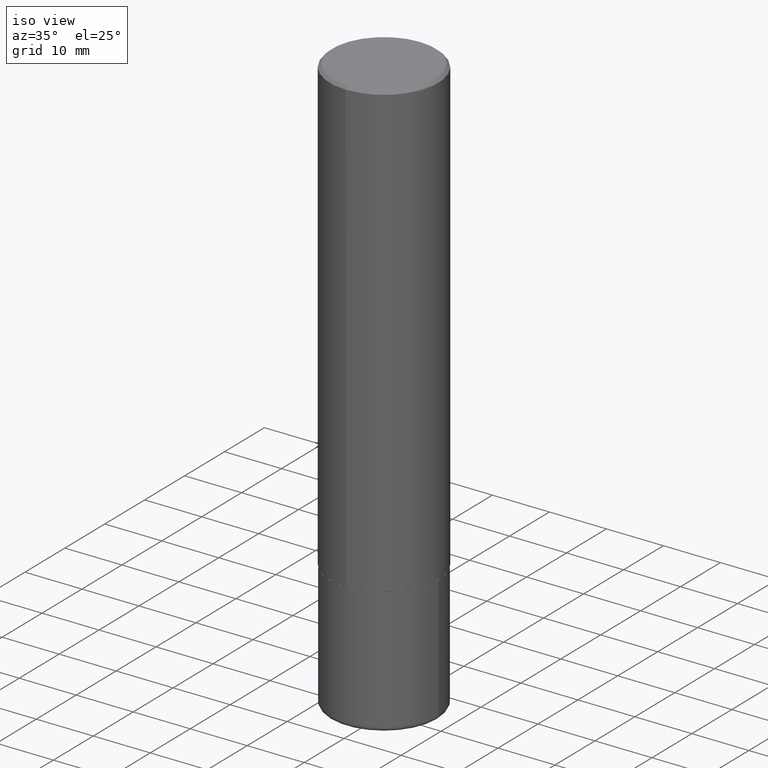
[diagram: clean part render]
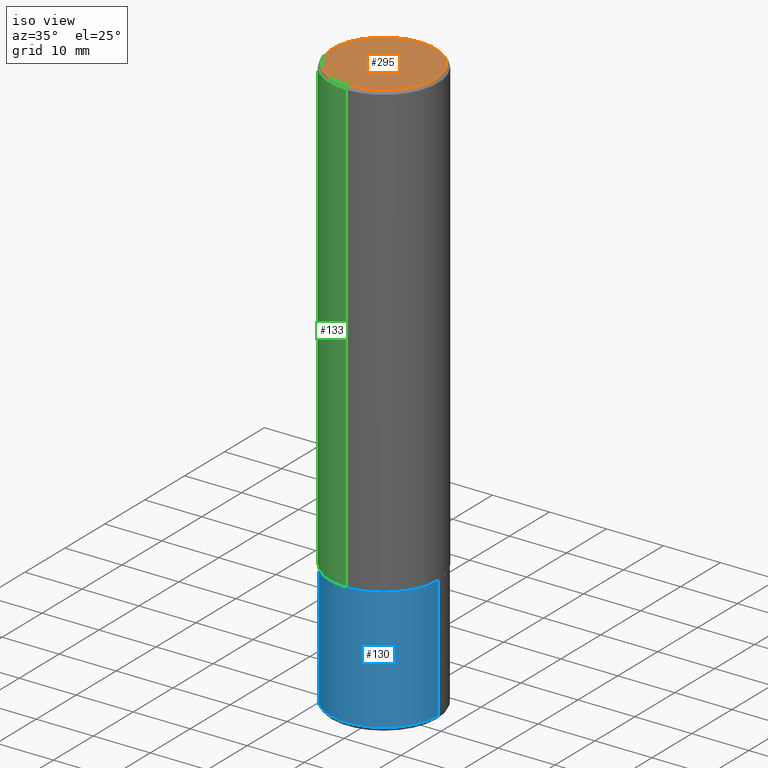
[diagram: same view with three faces highlighted in distinct colors, each labeled with its STEP entity id]
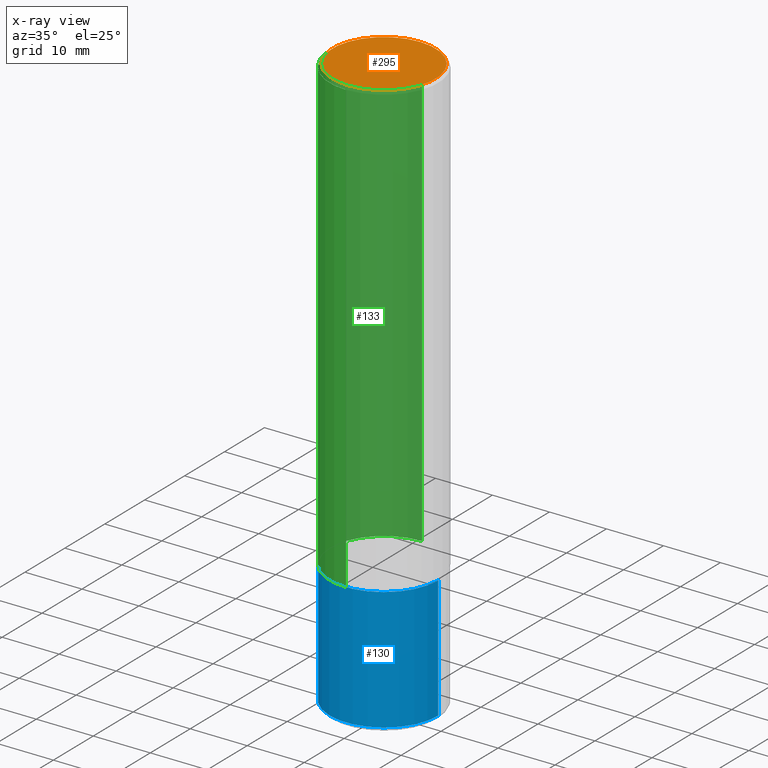
[diagram: x-ray of the same camera — body ghosted, the three highlighted faces saturated]
A machine part, iso view with three faces highlighted in distinct colors.
The next image is the same camera in x-ray (body ghosted, the three faces saturated) — at least one of them is partly hidden behind the body in this view.
Their STEP definitions:

[orange] entity #295 — the highlighted planar face has unit normal (0, -0, -1).
#10 = EDGE_CURVE ( 'NONE', #43, #173, #357, .T. ) ;
#43 = VERTEX_POINT ( 'NONE', #54 ) ;
#45 = CARTESIAN_POINT ( 'NONE',  ( -4.796192645073071495E-45, 6.844733884640892963E-31, 1.960833955664386180E-16 ) ) ;
#54 = CARTESIAN_POINT ( 'NONE',  ( -2.504081769186608216E-15, -0.3549999999999999267, 1.435291091877574841E-15 ) ) ;
#68 = DIRECTION ( 'NONE',  ( -6.982962677686265922E-15, -1.000000000000000000, 3.490725905101791232E-15 ) ) ;
#70 = AXIS2_PLACEMENT_3D ( 'NONE', #45, #305, #68 ) ;
#103 = ORIENTED_EDGE ( 'NONE', *, *, #148, .T. ) ;
#110 = PLANE ( 'NONE',  #166 ) ;
#137 = AXIS2_PLACEMENT_3D ( 'NONE', #258, #330, #418 ) ;
#148 = EDGE_CURVE ( 'NONE', #173, #43, #397, .T. ) ;
#166 = AXIS2_PLACEMENT_3D ( 'NONE', #408, #172, #319 ) ;
#172 = DIRECTION ( 'NONE',  ( 2.445996322747270084E-29, -3.490725905101792021E-15, -1.000000000000000000 ) ) ;
#173 = VERTEX_POINT ( 'NONE', #263 ) ;
#258 = CARTESIAN_POINT ( 'NONE',  ( -4.796192645073071495E-45, 6.844733884640892963E-31, 1.960833955664386180E-16 ) ) ;
#263 = CARTESIAN_POINT ( 'NONE',  ( 2.548781377355487113E-15, 0.3549999999999999267, -1.043124300744697210E-15 ) ) ;
#271 = EDGE_LOOP ( 'NONE', ( #103, #372 ) ) ;
#289 = FACE_OUTER_BOUND ( 'NONE', #271, .T. ) ;
#295 = ADVANCED_FACE ( 'NONE', ( #289 ), #110, .F. ) ;
#305 = DIRECTION ( 'NONE',  ( -2.445996322747269804E-29, 3.490725905101792415E-15, 1.000000000000000000 ) ) ;
#319 = DIRECTION ( 'NONE',  ( 6.982962677686265922E-15, 1.000000000000000000, -3.490725905101792021E-15 ) ) ;
#330 = DIRECTION ( 'NONE',  ( -2.445996322747269804E-29, 3.490725905101792415E-15, 1.000000000000000000 ) ) ;
#357 = CIRCLE ( 'NONE', #70, 0.3549999999999999267 ) ;
#372 = ORIENTED_EDGE ( 'NONE', *, *, #10, .T. ) ;
#397 = CIRCLE ( 'NONE', #137, 0.3549999999999999267 ) ;
#408 = CARTESIAN_POINT ( 'NONE',  ( 2.478951750578623815E-15, 0.3549999999999999267, -1.141165998527916815E-15 ) ) ;
#418 = DIRECTION ( 'NONE',  ( -6.982962677686265922E-15, -1.000000000000000000, 3.490725905101791232E-15 ) ) ;

[blue] entity #130 — the highlighted cylindrical surface (partial cylindrical patch) has radius 9.525 mm, axis along (-0, 0, 1).
#5 = VERTEX_POINT ( 'NONE', #239 ) ;
#42 = CYLINDRICAL_SURFACE ( 'NONE', #332, 0.3750000000000000555 ) ;
#47 = CARTESIAN_POINT ( 'NONE',  ( 0.3750000000000000555, -2.618611004132350016E-15, 1.828566290923476203E-29 ) ) ;
#49 = CARTESIAN_POINT ( 'NONE',  ( -0.3750000000000000555, -9.721494790445683584E-15, -3.125000000000000000 ) ) ;
#51 = DIRECTION ( 'NONE',  ( 1.000000000000000000, -6.982962677686266711E-15, 0.000000000000000000 ) ) ;
#53 = EDGE_CURVE ( 'NONE', #5, #234, #185, .T. ) ;
#63 = CARTESIAN_POINT ( 'NONE',  ( -0.3750000000000000555, 2.664535259100376091E-15, -1.844600658845589598E-29 ) ) ;
#69 = EDGE_LOOP ( 'NONE', ( #307, #337, #74, #284 ) ) ;
#74 = ORIENTED_EDGE ( 'NONE', *, *, #225, .T. ) ;
#83 = DIRECTION ( 'NONE',  ( -2.445468806185136597E-29, 3.491481338843145583E-15, 1.000000000000000000 ) ) ;
#118 = CARTESIAN_POINT ( 'NONE',  ( 0.000000000000000000, 0.000000000000000000, 0.000000000000000000 ) ) ;
#123 = VECTOR ( 'NONE', #280, 39.37007874015748143 ) ;
#130 = ADVANCED_FACE ( 'NONE', ( #201 ), #42, .T. ) ;
#153 = DIRECTION ( 'NONE',  ( 1.000000000000000000, -6.982962677686266711E-15, 0.000000000000000000 ) ) ;
#176 = CIRCLE ( 'NONE', #275, 0.3750000000000000555 ) ;
#185 = CIRCLE ( 'NONE', #219, 0.3750000000000000555 ) ;
#189 = CARTESIAN_POINT ( 'NONE',  ( 9.708511160554992872E-29, -1.386118091520728738E-14, -3.970000000000000195 ) ) ;
#196 = EDGE_CURVE ( 'NONE', #5, #370, #362, .T. ) ;
#200 = VERTEX_POINT ( 'NONE', #268 ) ;
#201 = FACE_OUTER_BOUND ( 'NONE', #69, .T. ) ;
#219 = AXIS2_PLACEMENT_3D ( 'NONE', #189, #250, #51 ) ;
#225 = EDGE_CURVE ( 'NONE', #234, #200, #346, .T. ) ;
#234 = VERTEX_POINT ( 'NONE', #278 ) ;
#239 = CARTESIAN_POINT ( 'NONE',  ( -0.3749999999999999445, -1.119664565610691011E-14, -3.970000000000000195 ) ) ;
#250 = DIRECTION ( 'NONE',  ( -2.445468806185136597E-29, 3.491481338843145583E-15, 1.000000000000000000 ) ) ;
#268 = CARTESIAN_POINT ( 'NONE',  ( 0.3750000000000000555, -1.352949018801718119E-14, -3.125000000000000000 ) ) ;
#275 = AXIS2_PLACEMENT_3D ( 'NONE', #373, #401, #153 ) ;
#278 = CARTESIAN_POINT ( 'NONE',  ( 0.3749999999999999445, -1.647979191933963740E-14, -3.970000000000000195 ) ) ;
#280 = DIRECTION ( 'NONE',  ( -2.445468806185136877E-29, 3.491481338843145188E-15, 1.000000000000000000 ) ) ;
#284 = ORIENTED_EDGE ( 'NONE', *, *, #354, .F. ) ;
#290 = DIRECTION ( 'NONE',  ( 1.000000000000000000, -6.982962677686265922E-15, 4.876176775795935793E-29 ) ) ;
#300 = DIRECTION ( 'NONE',  ( -2.445468806185136877E-29, 3.491481338843145188E-15, 1.000000000000000000 ) ) ;
#307 = ORIENTED_EDGE ( 'NONE', *, *, #196, .F. ) ;
#311 = VECTOR ( 'NONE', #300, 39.37007874015748143 ) ;
#332 = AXIS2_PLACEMENT_3D ( 'NONE', #118, #83, #290 ) ;
#337 = ORIENTED_EDGE ( 'NONE', *, *, #53, .T. ) ;
#346 = LINE ( 'NONE', #47, #123 ) ;
#354 = EDGE_CURVE ( 'NONE', #370, #200, #176, .T. ) ;
#362 = LINE ( 'NONE', #63, #311 ) ;
#370 = VERTEX_POINT ( 'NONE', #49 ) ;
#373 = CARTESIAN_POINT ( 'NONE',  ( 7.642090019328551865E-29, -1.091087918388483118E-14, -3.125000000000000000 ) ) ;
#401 = DIRECTION ( 'NONE',  ( -2.445468806185136597E-29, 3.491481338843145583E-15, 1.000000000000000000 ) ) ;

[green] entity #133 — the highlighted cylindrical surface (partial cylindrical patch) has radius 9.525 mm, axis along (-0, 0, 1).
#17 = LINE ( 'NONE', #78, #412 ) ;
#44 = CARTESIAN_POINT ( 'NONE',  ( -2.618611004132276258E-15, -0.3750000000000113243, -3.123999999999999222 ) ) ;
#50 = CARTESIAN_POINT ( 'NONE',  ( -2.618611004132351594E-15, -0.3750000000000002220, 1.309022214413172994E-15 ) ) ;
#78 = CARTESIAN_POINT ( 'NONE',  ( 2.664535259100376880E-15, 0.3750000000000002220, -1.309022214413172994E-15 ) ) ;
#80 = DIRECTION ( 'NONE',  ( -6.982962677686265922E-15, -1.000000000000000000, 3.494488891895535640E-15 ) ) ;
#95 = ORIENTED_EDGE ( 'NONE', *, *, #270, .T. ) ;
#96 = CARTESIAN_POINT ( 'NONE',  ( 7.641292512262471991E-29, -1.090502772753799986E-14, -3.124000000000000554 ) ) ;
#101 = DIRECTION ( 'NONE',  ( -2.445996322747269804E-29, 3.490725905101792415E-15, 1.000000000000000000 ) ) ;
#112 = DIRECTION ( 'NONE',  ( -2.445996322747269804E-29, 3.490725905101792415E-15, 1.000000000000000000 ) ) ;
#133 = ADVANCED_FACE ( 'NONE', ( #325 ), #326, .T. ) ;
#135 = ORIENTED_EDGE ( 'NONE', *, *, #378, .F. ) ;
#138 = VECTOR ( 'NONE', #208, 39.37007874015748143 ) ;
#141 = LINE ( 'NONE', #50, #138 ) ;
#142 = AXIS2_PLACEMENT_3D ( 'NONE', #96, #101, #230 ) ;
#144 = AXIS2_PLACEMENT_3D ( 'NONE', #146, #112, #80 ) ;
#145 = DIRECTION ( 'NONE',  ( -2.445996322747270084E-29, 3.490725905101792021E-15, 1.000000000000000000 ) ) ;
#146 = CARTESIAN_POINT ( 'NONE',  ( 4.891992645494561398E-31, -6.981451810203614264E-17, -0.02000000000000008715 ) ) ;
#158 = DIRECTION ( 'NONE',  ( -2.445996322747269804E-29, 3.490725905101792415E-15, 1.000000000000000000 ) ) ;
#162 = AXIS2_PLACEMENT_3D ( 'NONE', #261, #158, #296 ) ;
#165 = EDGE_LOOP ( 'NONE', ( #335, #344, #95, #135 ) ) ;
#174 = CARTESIAN_POINT ( 'NONE',  ( -2.572686749164324336E-15, -0.3750000000000001665, -0.01999999999999877570 ) ) ;
#179 = EDGE_CURVE ( 'NONE', #399, #364, #375, .T. ) ;
#208 = DIRECTION ( 'NONE',  ( -2.445996322747270084E-29, 3.490725905101792021E-15, 1.000000000000000000 ) ) ;
#230 = DIRECTION ( 'NONE',  ( -6.982962677686265922E-15, -1.000000000000000000, 2.913971193241877611E-15 ) ) ;
#240 = VERTEX_POINT ( 'NONE', #174 ) ;
#261 = CARTESIAN_POINT ( 'NONE',  ( 0.000000000000000000, 0.000000000000000000, 0.000000000000000000 ) ) ;
#270 = EDGE_CURVE ( 'NONE', #364, #240, #141, .T. ) ;
#296 = DIRECTION ( 'NONE',  ( -6.982962677686266711E-15, -1.000000000000000000, 3.490725905101792415E-15 ) ) ;
#325 = FACE_OUTER_BOUND ( 'NONE', #165, .T. ) ;
#326 = CYLINDRICAL_SURFACE ( 'NONE', #162, 0.3750000000000002220 ) ;
#331 = EDGE_CURVE ( 'NONE', #399, #340, #17, .T. ) ;
#335 = ORIENTED_EDGE ( 'NONE', *, *, #331, .F. ) ;
#340 = VERTEX_POINT ( 'NONE', #341 ) ;
#341 = CARTESIAN_POINT ( 'NONE',  ( 2.618611004132351200E-15, 0.3750000000000000555, -0.02000000000000139513 ) ) ;
#344 = ORIENTED_EDGE ( 'NONE', *, *, #179, .T. ) ;
#364 = VERTEX_POINT ( 'NONE', #44 ) ;
#375 = CIRCLE ( 'NONE', #142, 0.3750000000000003886 ) ;
#376 = CIRCLE ( 'NONE', #144, 0.3750000000000001110 ) ;
#378 = EDGE_CURVE ( 'NONE', #340, #240, #376, .T. ) ;
#399 = VERTEX_POINT ( 'NONE', #415 ) ;
#412 = VECTOR ( 'NONE', #145, 39.37007874015748143 ) ;
#415 = CARTESIAN_POINT ( 'NONE',  ( 2.664535259100415534E-15, 0.3749999999999894529, -3.124000000000001442 ) ) ;